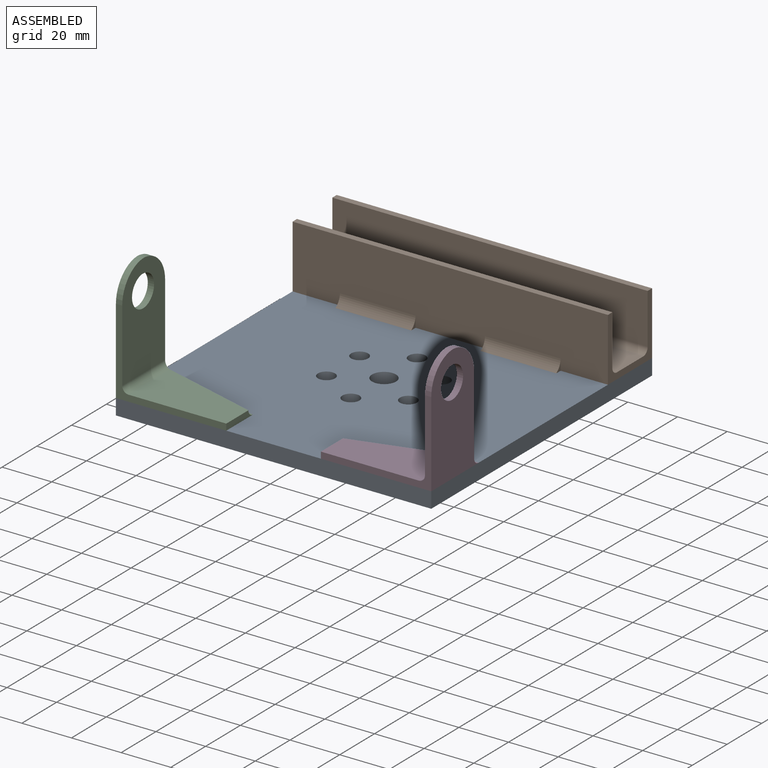
[diagram: assembled view]
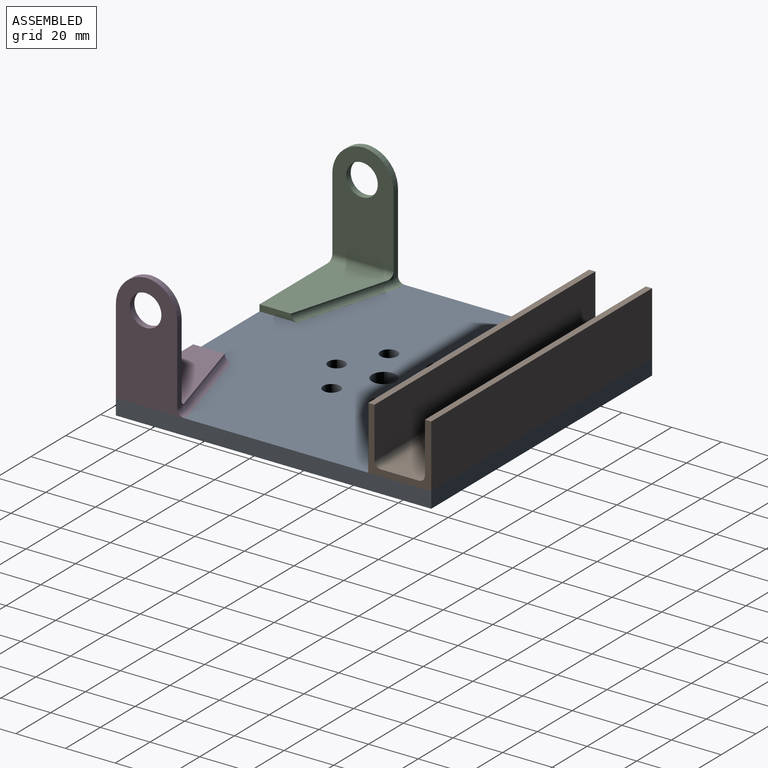
[diagram: assembled view, second angle]
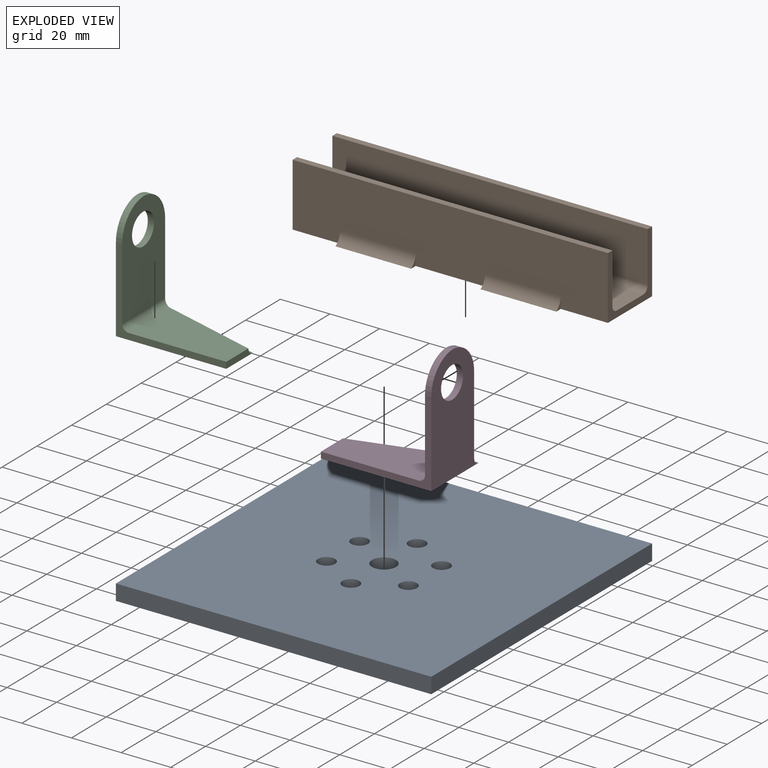
[diagram: exploded view]
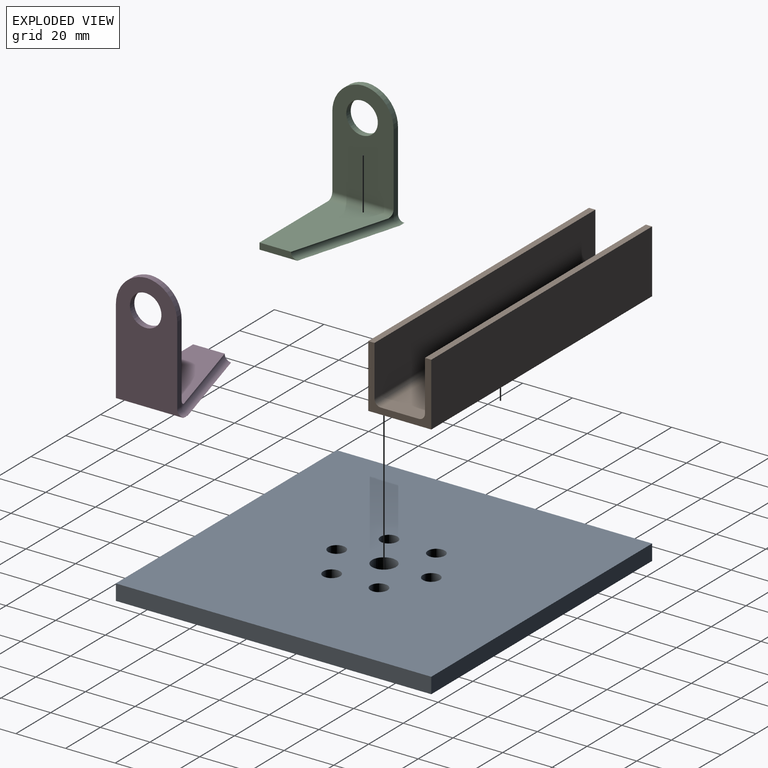
[diagram: exploded view, second angle]
ASSEMBLY  parts=4 mates=3
PART A: 13 faces, bbox 127x127x6.4 mm
  f0: plane 127x6.35mm, normal (0,-1,0), area 806.5mm2, adj f1,f3,f4,f5
  f1: plane 127x6.35mm, normal (1,0,0), area 806.5mm2, adj f0,f2,f4,f5
  f2: plane 127x6.35mm, normal (0,1,0), area 806.5mm2, adj f1,f3,f4,f5
  f3: plane 127x6.35mm, normal (-1,0,0), area 806.5mm2, adj f0,f2,f4,f5
  f4: plane 127x127mm, normal (0,0,1), area 15834.2mm2, adj f0,f1,f2,f3,f6,f7,f8,f9
  f5: plane 127x127mm, normal (0,0,-1), area 15834.2mm2, adj f0,f1,f2,f3,f6,f7,f8,f9
  f6: cylinder r=3.43mm len=6.86mm, axis (0,0,1), area 136.8mm2, adj f4,f5
  f7: cylinder r=4.83mm len=9.65mm, axis (0,0,1), area 192.5mm2, adj f4,f5
  f8: cylinder r=3.43mm len=6.86mm, axis (0,0,1), area 136.8mm2, adj f4,f5
  f9: cylinder r=3.43mm len=6.86mm, axis (0,0,1), area 136.8mm2, adj f4,f5
  f10: cylinder r=3.43mm len=6.86mm, axis (0,0,1), area 136.8mm2, adj f4,f5
  f11: cylinder r=3.43mm len=6.86mm, axis (0,0,1), area 136.8mm2, adj f4,f5
  f12: cylinder r=3.43mm len=6.86mm, axis (0,0,1), area 136.8mm2, adj f4,f5
PART B: 24 faces, bbox 127x27.9x25.4 mm
  f0: plane 25.4x19.05mm, normal (0,0,-1), area 483.9mm2, adj f3,f4,f5,f19
  f1: plane 27.94x25.4mm, normal (0,0,-1), area 709.7mm2, adj f3,f5,f14,f18
  f2: plane 127x15.24mm, normal (0,0,1), area 1935.5mm2, adj f4,f6,f12,f13
  f3: plane 127x25.4mm, normal (0,-1,0), area 2957.6mm2, adj f0,f1,f4,f6,f7,f11,f14,f16
  f4: plane 25.4x25.4mm, normal (1,0,0), area 183.4mm2, adj f0,f2,f3,f5,f8,f9,f10,f11
  f5: plane 127x25.43mm, normal (0,1,0), area 3227.3mm2, adj f0,f1,f4,f6,f7,f9,f14,f16
  f6: plane 25.4x25.4mm, normal (-1,0,0), area 183.4mm2, adj f2,f3,f5,f7,f8,f9,f10,f11
  f7: plane 25.4x19.05mm, normal (0,0,-1), area 483.9mm2, adj f3,f5,f6,f16
  f8: plane 127x20.32mm, normal (0,-1,0), area 2580.6mm2, adj f4,f6,f9,f13
  f9: plane 127x2.54mm, normal (0,0,1), area 322.6mm2, adj f4,f5,f6,f8
  f10: plane 127x20.32mm, normal (0,1,0), area 2580.6mm2, adj f4,f6,f11,f12
  f11: plane 127x2.54mm, normal (0,0,1), area 322.6mm2, adj f3,f4,f6,f10
  f12: cylinder r=2.54mm len=127mm, axis (-1,0,0), area 506.7mm2, adj f2,f4,f6,f10
  f13: cylinder r=2.54mm len=127mm, axis (1,0,0), area 506.7mm2, adj f2,f4,f6,f8
  f14: plane 27.94x4.43mm, normal (1,0,0), area 4mm2, adj f1,f3,f5,f15,f17,f23
  f15: plane 30.48x0.03mm, normal (0,-1,0), area 0.8mm2, adj f14,f16,f17,f23
  f16: plane 27.94x4.43mm, normal (-1,0,0), area 4mm2, adj f3,f5,f7,f15,f17,f23
  f17: plane 30.48x27.94mm, normal (0,0,-1), area 851.6mm2, adj f5,f14,f15,f16
  f18: plane 27.94x4.43mm, normal (-1,0,0), area 4mm2, adj f1,f3,f5,f20,f21,f22
  f19: plane 27.94x4.43mm, normal (1,0,0), area 4mm2, adj f0,f3,f5,f20,f21,f22
  f20: plane 30.48x0.03mm, normal (0,-1,0), area 0.8mm2, adj f18,f19,f21,f22
  f21: plane 30.48x27.94mm, normal (0,0,-1), area 851.6mm2, adj f5,f18,f19,f20
  f22: cylinder r=5.08mm len=30.48mm, axis (-1,0,0), area 162.1mm2, adj f3,f18,f19,f20
  f23: cylinder r=5.08mm len=30.48mm, axis (-1,0,0), area 162.1mm2, adj f3,f14,f15,f16
PART C: 16 faces, bbox 45.4x27.5x47.3 mm
  f0: plane 15.54x2.86mm, normal (1,0,0), area 34.1mm2, adj f1,f3,f4,f12,f13,f14
  f1: plane 42.22x12.28mm, normal (0.27,0.96,0), area 1.5mm2, adj f0,f4,f6,f10,f14
  f2: plane 47.01x27.22mm, normal (-1,0,0), area 965.6mm2, adj f3,f6,f7,f8,f9,f11,f13,f15
  f3: plane 44.45x34.32mm, normal (0,-1,0), area 196.1mm2, adj f0,f2,f4,f5,f7,f10,f13
  f4: plane 39.37x23.95mm, normal (0,0,1), area 721.4mm2, adj f0,f1,f3,f10
  f5: plane 41.91x24.67mm, normal (1,0,0), area 838.2mm2, adj f3,f6,f7,f8,f9,f10
  f6: plane 31.75x2.54mm, normal (0,1,0), area 80.6mm2, adj f1,f2,f5,f8,f15
  f7: cylinder r=12.7mm len=12.7mm, axis (-1,0,0), area 49.7mm2, adj f2,f3,f5,f8
  f8: cylinder r=12.7mm len=12.7mm, axis (1,0,0), area 49.7mm2, adj f2,f5,f6,f7
  f9: cylinder r=6.35mm len=12.7mm, axis (-1,0,0), area 101.3mm2, adj f2,f5
  f10: cylinder r=2.54mm len=24.67mm, axis (0,1,0), area 97mm2, adj f1,f3,f4,f5
  f11: plane 2.54x0.03mm, normal (0,1,0), area 0.1mm2, adj f2,f12,f13,f15
  f12: plane 41.91x11.97mm, normal (0.27,0.96,0), area 1.1mm2, adj f0,f11,f13,f14
  f13: plane 44.45x27.22mm, normal (0,0,-1), area 958.8mm2, adj f0,f2,f3,f11,f12
  f14: cylinder r=2.54mm len=43.25mm, axis (-0.96,0.27,0), area 169.7mm2, adj f0,f1,f12,f15
  f15: cylinder r=2.54mm len=2.54mm, axis (-1,0,0), area 10.1mm2, adj f2,f6,f11,f14
PART D: 16 faces, bbox 45.4x27.5x47.3 mm
  f0: plane 15.54x2.86mm, normal (-1,0,0), area 34.1mm2, adj f1,f3,f4,f12,f13,f15
  f1: plane 42.22x12.28mm, normal (-0.27,0.96,0), area 1.5mm2, adj f0,f4,f6,f10,f15
  f2: plane 47.01x27.22mm, normal (1,0,0), area 965.6mm2, adj f3,f6,f7,f8,f9,f11,f13,f14
  f3: plane 44.45x34.32mm, normal (0,-1,0), area 196.1mm2, adj f0,f2,f4,f5,f8,f10,f13
  f4: plane 39.37x23.95mm, normal (0,0,1), area 721.4mm2, adj f0,f1,f3,f10
  f5: plane 41.91x24.67mm, normal (-1,0,0), area 838.2mm2, adj f3,f6,f7,f8,f9,f10
  f6: plane 31.75x2.54mm, normal (0,1,0), area 80.6mm2, adj f1,f2,f5,f7,f14
  f7: cylinder r=12.7mm len=12.7mm, axis (-1,0,0), area 49.7mm2, adj f2,f5,f6,f8
  f8: cylinder r=12.7mm len=12.7mm, axis (1,0,0), area 49.7mm2, adj f2,f3,f5,f7
  f9: cylinder r=6.35mm len=12.7mm, axis (-1,0,0), area 101.3mm2, adj f2,f5
  f10: cylinder r=2.54mm len=24.67mm, axis (0,1,0), area 97mm2, adj f1,f3,f4,f5
  f11: plane 2.54x0.03mm, normal (0,1,0), area 0.1mm2, adj f2,f12,f13,f14
  f12: plane 41.91x11.97mm, normal (-0.27,0.96,0), area 1.1mm2, adj f0,f11,f13,f15
  f13: plane 44.45x27.22mm, normal (0,0,-1), area 958.8mm2, adj f0,f2,f3,f11,f12
  f14: cylinder r=2.54mm len=2.54mm, axis (1,0,0), area 10.1mm2, adj f2,f6,f11,f15
  f15: cylinder r=2.54mm len=43.25mm, axis (-0.96,-0.27,0), area 169.7mm2, adj f0,f1,f12,f14
PLACE A t=(-22.37,-5.44,8.04)mm
PLACE B t=(-22.37,45.36,14.39)mm
PLACE C t=(-28.79,-68.94,14.42)mm
PLACE D t=(-15.94,-68.94,14.42)mm
MATE fastened C.f13 <-> A.f4  axis (0,0,-1) through (-85.87,-68.94,14.39)mm
MATE fastened B.f0 <-> A.f4  axis (0,0,-1) through (41.13,58.06,14.39)mm
MATE fastened D.f13 <-> A.f4  axis (0,0,-1) through (41.13,-68.94,14.39)mm
